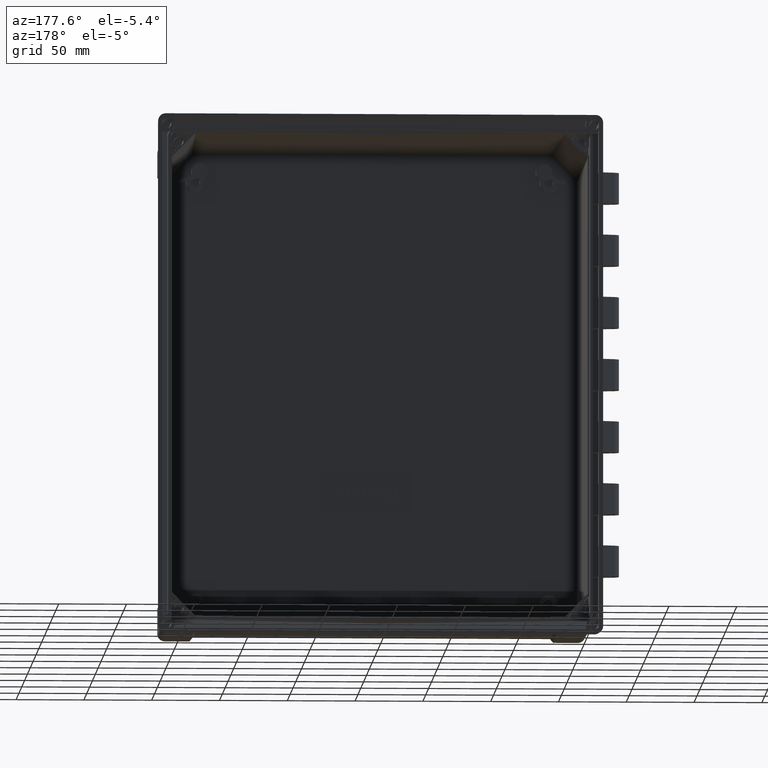
[diagram: clean part render]
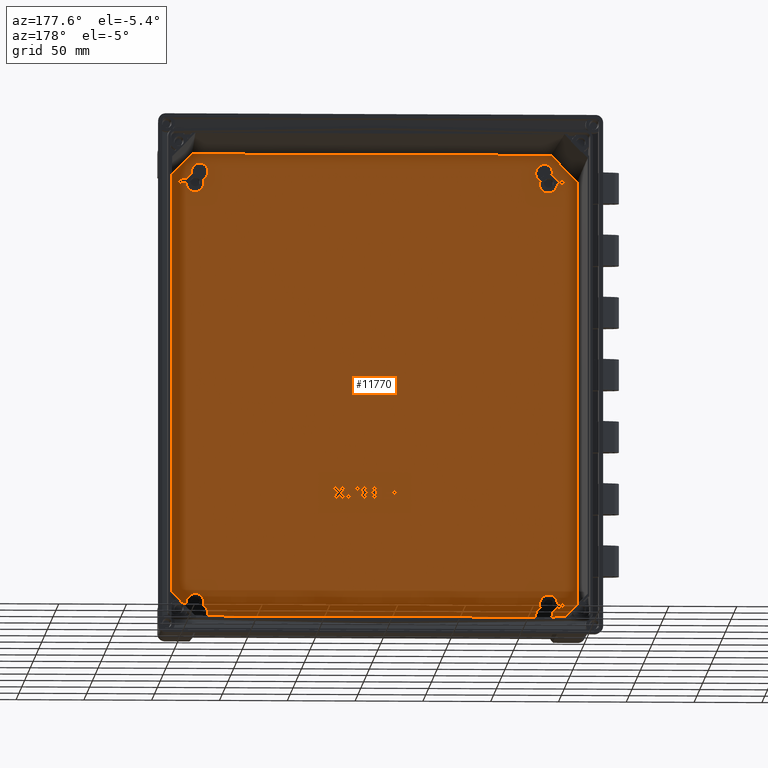
[diagram: same view with one face highlighted and labeled with its STEP entity id]
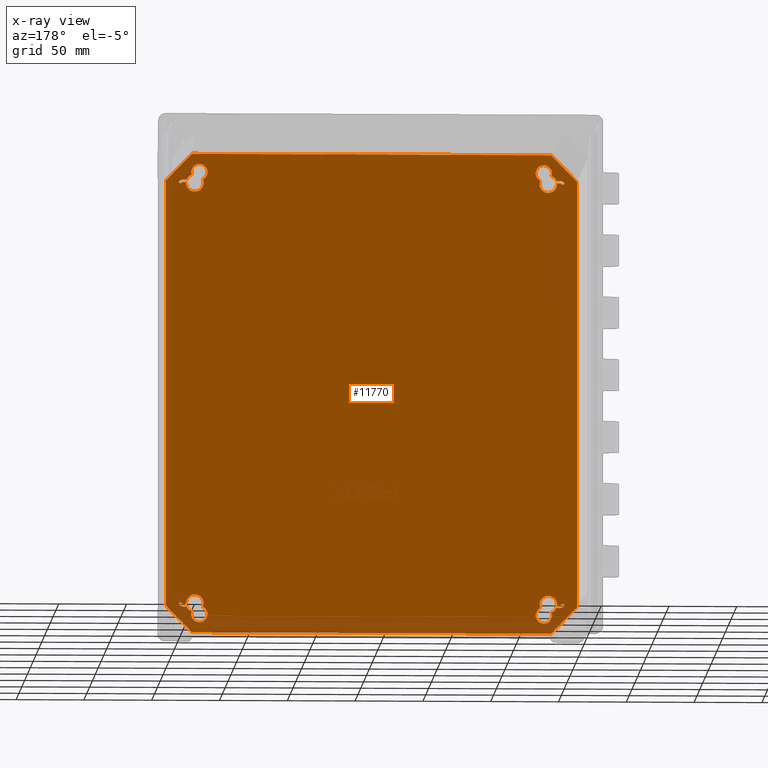
[diagram: x-ray of the same camera — body ghosted, the highlighted face saturated]
A machine part, auxiliary view. The second image highlights one B-rep face of the part: STEP entity #11770.
The next image is the same camera in x-ray: the body ghosted, the highlighted face saturated — about 5% of this face is hidden behind the body in this view.
In plain terms, the highlighted planar face has unit normal (0, -1, 0).
Its self-contained STEP definition (entity closure, byte-faithful):
#64 = FACE_OUTER_BOUND ( 'NONE', #2574, .T. ) ;
#116 = CIRCLE ( 'NONE', #7383, 4.000000000000003600 ) ;
#151 = AXIS2_PLACEMENT_3D ( 'NONE', #12990, #4440, #4917 ) ;
#295 = CIRCLE ( 'NONE', #14087, 6.500000000000005300 ) ;
#332 = VERTEX_POINT ( 'NONE', #8402 ) ;
#569 = VERTEX_POINT ( 'NONE', #5795 ) ;
#660 = CIRCLE ( 'NONE', #12095, 0.5000000000000004400 ) ;
#777 = CARTESIAN_POINT ( 'NONE',  ( 136.7949235880805600, -160.4000000000000100, 155.8568415562056100 ) ) ;
#800 = CIRCLE ( 'NONE', #9741, 6.000000000000005300 ) ;
#928 = ORIENTED_EDGE ( 'NONE', *, *, #16315, .F. ) ;
#993 = DIRECTION ( 'NONE',  ( 0.0000000000000000000, 0.0000000000000000000, 1.000000000000000000 ) ) ;
#1037 = AXIS2_PLACEMENT_3D ( 'NONE', #8504, #18223, #19846 ) ;
#1213 = DIRECTION ( 'NONE',  ( 0.0000000000000000000, 1.000000000000000000, 0.0000000000000000000 ) ) ;
#1239 = ORIENTED_EDGE ( 'NONE', *, *, #8082, .F. ) ;
#1255 = VERTEX_POINT ( 'NONE', #7609 ) ;
#1256 = CARTESIAN_POINT ( 'NONE',  ( 130.2999999999999500, -160.4000000000000100, -155.6000000000000500 ) ) ;
#1290 = LINE ( 'NONE', #12359, #3538 ) ;
#1327 = DIRECTION ( 'NONE',  ( -0.0000000000000000000, 1.000000000000000000, 0.0000000000000000000 ) ) ;
#1359 = DIRECTION ( 'NONE',  ( -0.0000000000000000000, 1.000000000000000000, 0.0000000000000000000 ) ) ;
#1415 = EDGE_CURVE ( 'NONE', #6500, #2694, #15702, .T. ) ;
#1430 = CARTESIAN_POINT ( 'NONE',  ( -127.0000000000000000, -160.4000000000000100, -163.6000000000000500 ) ) ;
#1507 = CARTESIAN_POINT ( 'NONE',  ( -130.3000000000000700, -160.4000000000000100, -155.5999999999999700 ) ) ;
#1539 = CARTESIAN_POINT ( 'NONE',  ( -127.0000000000000000, -160.4000000000000100, -163.6000000000000500 ) ) ;
#1602 = VERTEX_POINT ( 'NONE', #7685 ) ;
#1671 = CARTESIAN_POINT ( 'NONE',  ( -132.3709107135739500, -160.4000000000000100, 177.0491578505147200 ) ) ;
#1750 = AXIS2_PLACEMENT_3D ( 'NONE', #13931, #10831, #5753 ) ;
#1881 = AXIS2_PLACEMENT_3D ( 'NONE', #1430, #19144, #6133 ) ;
#1919 = CIRCLE ( 'NONE', #9018, 6.500000000000005300 ) ;
#1929 = VERTEX_POINT ( 'NONE', #20820 ) ;
#1993 = ORIENTED_EDGE ( 'NONE', *, *, #16512, .F. ) ;
#2012 = ORIENTED_EDGE ( 'NONE', *, *, #5715, .F. ) ;
#2013 = CARTESIAN_POINT ( 'NONE',  ( 130.2999999999999500, -160.4000000000000100, -155.6000000000000500 ) ) ;
#2053 = VERTEX_POINT ( 'NONE', #2705 ) ;
#2092 = DIRECTION ( 'NONE',  ( 0.0000000000000000000, 0.0000000000000000000, -1.000000000000000000 ) ) ;
#2093 = CARTESIAN_POINT ( 'NONE',  ( -141.4213495895495200, -160.4000000000000100, -155.2471832475530700 ) ) ;
#2171 = CARTESIAN_POINT ( 'NONE',  ( 138.2236692768190400, -160.4000000000000100, -156.1207090964403800 ) ) ;
#2180 = CARTESIAN_POINT ( 'NONE',  ( -132.3728498188423000, -160.4000000000000100, 177.0491578505147200 ) ) ;
#2205 = VECTOR ( 'NONE', #18922, 1000.000000000000100 ) ;
#2230 = VERTEX_POINT ( 'NONE', #14937 ) ;
#2340 = AXIS2_PLACEMENT_3D ( 'NONE', #1507, #11009, #15798 ) ;
#2434 = DIRECTION ( 'NONE',  ( -0.0000000000000000000, -1.000000000000000000, -0.0000000000000000000 ) ) ;
#2476 = DIRECTION ( 'NONE',  ( 0.0000000000000000000, 0.0000000000000000000, -1.000000000000000000 ) ) ;
#2490 = DIRECTION ( 'NONE',  ( 0.0000000000000000000, 0.0000000000000000000, -1.000000000000000000 ) ) ;
#2521 = DIRECTION ( 'NONE',  ( -0.0000000000000000000, -1.000000000000000000, -0.0000000000000000000 ) ) ;
#2574 = EDGE_LOOP ( 'NONE', ( #20580, #17689, #11982, #19529, #13867, #19579, #13096, #4085 ) ) ;
#2576 = AXIS2_PLACEMENT_3D ( 'NONE', #9265, #12581, #7571 ) ;
#2598 = CARTESIAN_POINT ( 'NONE',  ( -130.3000000000000400, -160.4000000000000100, 149.1000000000000200 ) ) ;
#2638 = VERTEX_POINT ( 'NONE', #4298 ) ;
#2694 = VERTEX_POINT ( 'NONE', #9241 ) ;
#2705 = CARTESIAN_POINT ( 'NONE',  ( 136.7949235880805600, -160.4000000000000100, -155.8568415562055800 ) ) ;
#2711 = CIRCLE ( 'NONE', #2340, 6.500000000000005300 ) ;
#2830 = CARTESIAN_POINT ( 'NONE',  ( 138.2236692768190400, -160.4000000000000100, 152.1207090964403800 ) ) ;
#2833 = ORIENTED_EDGE ( 'NONE', *, *, #4732, .F. ) ;
#2842 = VECTOR ( 'NONE', #12083, 1000.000000000000100 ) ;
#3018 = VERTEX_POINT ( 'NONE', #2171 ) ;
#3085 = VERTEX_POINT ( 'NONE', #11834 ) ;
#3179 = ORIENTED_EDGE ( 'NONE', *, *, #6110, .T. ) ;
#3235 = ORIENTED_EDGE ( 'NONE', *, *, #19586, .T. ) ;
#3313 = VECTOR ( 'NONE', #6730, 1000.000000000000100 ) ;
#3468 = VERTEX_POINT ( 'NONE', #9549 ) ;
#3538 = VECTOR ( 'NONE', #4310, 1000.000000000000000 ) ;
#3638 = CARTESIAN_POINT ( 'NONE',  ( 141.0717991529603200, -160.4000000000000100, 155.6046947750319600 ) ) ;
#3801 = ORIENTED_EDGE ( 'NONE', *, *, #12397, .F. ) ;
#3848 = CARTESIAN_POINT ( 'NONE',  ( 141.4213495895495200, -160.4000000000000100, -155.2471832475530100 ) ) ;
#3903 = CIRCLE ( 'NONE', #15787, 6.500000000000005300 ) ;
#3999 = VERTEX_POINT ( 'NONE', #19834 ) ;
#4014 = LINE ( 'NONE', #17431, #20641 ) ;
#4015 = DIRECTION ( 'NONE',  ( 0.6991008731783916500, 0.0000000000000000000, 0.7150230549578178200 ) ) ;
#4085 = ORIENTED_EDGE ( 'NONE', *, *, #4803, .T. ) ;
#4097 = CARTESIAN_POINT ( 'NONE',  ( -141.4213495895495200, -160.4000000000000100, 155.2471832475530700 ) ) ;
#4116 = AXIS2_PLACEMENT_3D ( 'NONE', #6942, #18124, #2092 ) ;
#4150 = AXIS2_PLACEMENT_3D ( 'NONE', #5688, #7237, #19906 ) ;
#4298 = CARTESIAN_POINT ( 'NONE',  ( 124.3500548983536300, -160.4000000000000100, 158.2168976455709200 ) ) ;
#4310 = DIRECTION ( 'NONE',  ( -3.526926042593516500E-016, 0.0000000000000000000, -1.000000000000000000 ) ) ;
#4343 = CARTESIAN_POINT ( 'NONE',  ( 141.4213495895495200, -160.4000000000000100, 155.2471832475530700 ) ) ;
#4344 = DIRECTION ( 'NONE',  ( -0.0000000000000000000, 1.000000000000000000, 0.0000000000000000000 ) ) ;
#4364 = ORIENTED_EDGE ( 'NONE', *, *, #18572, .T. ) ;
#4389 = ORIENTED_EDGE ( 'NONE', *, *, #19234, .F. ) ;
#4436 = CARTESIAN_POINT ( 'NONE',  ( -142.1400118401855700, -160.4000000000000100, -155.9498422785540900 ) ) ;
#4437 = CARTESIAN_POINT ( 'NONE',  ( 141.4213495895495200, -160.4000000000000100, -155.2471832475530700 ) ) ;
#4440 = DIRECTION ( 'NONE',  ( 0.0000000000000000000, -1.000000000000000000, 0.0000000000000000000 ) ) ;
#4441 = DIRECTION ( 'NONE',  ( -0.0000000000000000000, 1.000000000000000000, -0.0000000000000000000 ) ) ;
#4445 = CARTESIAN_POINT ( 'NONE',  ( 130.2999999999999800, -160.4000000000000100, 155.5999999999999900 ) ) ;
#4526 = CARTESIAN_POINT ( 'NONE',  ( -136.4026792968056400, -160.4000000000000100, 157.8377009184295300 ) ) ;
#4607 = CIRCLE ( 'NONE', #6551, 6.000000000000005300 ) ;
#4612 = DIRECTION ( 'NONE',  ( -4.270088556250598700E-015, 0.0000000000000000000, -1.000000000000000000 ) ) ;
#4699 = DIRECTION ( 'NONE',  ( -0.0000000000000000000, 1.000000000000000000, 0.0000000000000000000 ) ) ;
#4703 = ORIENTED_EDGE ( 'NONE', *, *, #19399, .T. ) ;
#4711 = DIRECTION ( 'NONE',  ( 0.0000000000000000000, 0.0000000000000000000, -1.000000000000000000 ) ) ;
#4732 = EDGE_CURVE ( 'NONE', #1602, #16742, #2711, .T. ) ;
#4746 = DIRECTION ( 'NONE',  ( -1.000000000000000000, 0.0000000000000000000, 0.0000000000000000000 ) ) ;
#4781 = DIRECTION ( 'NONE',  ( -0.0000000000000000000, -1.000000000000000000, -0.0000000000000000000 ) ) ;
#4803 = EDGE_CURVE ( 'NONE', #1929, #12674, #19829, .T. ) ;
#4851 = CIRCLE ( 'NONE', #13071, 4.000000000000003600 ) ;
#4869 = CIRCLE ( 'NONE', #4116, 6.000000000000005300 ) ;
#4872 = AXIS2_PLACEMENT_3D ( 'NONE', #15078, #5103, #5395 ) ;
#4909 = EDGE_LOOP ( 'NONE', ( #4389, #8409, #20336, #18026, #2833, #17153, #13753, #4703, #4364, #3179, #6315, #20063 ) ) ;
#4917 = DIRECTION ( 'NONE',  ( 0.0000000000000000000, 0.0000000000000000000, -1.000000000000000000 ) ) ;
#4940 = ORIENTED_EDGE ( 'NONE', *, *, #18431, .F. ) ;
#5066 = CARTESIAN_POINT ( 'NONE',  ( -124.3500548983536500, -160.4000000000000100, 158.2168976455709200 ) ) ;
#5103 = DIRECTION ( 'NONE',  ( -0.0000000000000000000, 1.000000000000000000, 0.0000000000000000000 ) ) ;
#5104 = ORIENTED_EDGE ( 'NONE', *, *, #6525, .T. ) ;
#5148 = CARTESIAN_POINT ( 'NONE',  ( 140.7553402778335100, -160.4000000000000100, 155.2175852551884800 ) ) ;
#5287 = CARTESIAN_POINT ( 'NONE',  ( -141.4213495895495200, -160.4000000000000100, -155.2471832475530700 ) ) ;
#5357 = DIRECTION ( 'NONE',  ( 0.0000000000000000000, 0.0000000000000000000, -1.000000000000000000 ) ) ;
#5362 = CIRCLE ( 'NONE', #1037, 0.5000000000000004400 ) ;
#5395 = DIRECTION ( 'NONE',  ( -8.540177112501197500E-015, 0.0000000000000000000, -1.000000000000000000 ) ) ;
#5491 = CARTESIAN_POINT ( 'NONE',  ( 151.5917432887406400, -160.4000000000000100, -157.3905664311596400 ) ) ;
#5562 = CARTESIAN_POINT ( 'NONE',  ( -151.5930564263212800, -160.4000000000000100, 157.3892233865711300 ) ) ;
#5570 = VERTEX_POINT ( 'NONE', #5491 ) ;
#5577 = CARTESIAN_POINT ( 'NONE',  ( 127.0000000000000000, -160.4000000000000100, -169.6000000000000500 ) ) ;
#5688 = CARTESIAN_POINT ( 'NONE',  ( -130.3000000000000700, -160.4000000000000100, -155.5999999999999700 ) ) ;
#5715 = EDGE_CURVE ( 'NONE', #10988, #2638, #8206, .T. ) ;
#5743 = AXIS2_PLACEMENT_3D ( 'NONE', #9525, #6328, #4711 ) ;
#5751 = VECTOR ( 'NONE', #10893, 1000.000000000000100 ) ;
#5753 = DIRECTION ( 'NONE',  ( 0.0000000000000000000, 0.0000000000000000000, -1.000000000000000000 ) ) ;
#5795 = CARTESIAN_POINT ( 'NONE',  ( 130.2999999999999500, -160.4000000000000100, -149.1000000000000500 ) ) ;
#5819 = CARTESIAN_POINT ( 'NONE',  ( 151.5930564263214000, -160.4000000000000100, -157.3892233865710800 ) ) ;
#5820 = ORIENTED_EDGE ( 'NONE', *, *, #7547, .F. ) ;
#5908 = LINE ( 'NONE', #5819, #20769 ) ;
#5945 = CIRCLE ( 'NONE', #13479, 6.000000000000005300 ) ;
#5969 = VERTEX_POINT ( 'NONE', #18129 ) ;
#5980 = CARTESIAN_POINT ( 'NONE',  ( 130.2999999999999800, -160.4000000000000100, 155.5999999999999900 ) ) ;
#5991 = ORIENTED_EDGE ( 'NONE', *, *, #15917, .F. ) ;
#6095 = DIRECTION ( 'NONE',  ( 0.0000000000000000000, 0.0000000000000000000, 1.000000000000000000 ) ) ;
#6110 = EDGE_CURVE ( 'NONE', #18904, #20001, #12750, .T. ) ;
#6133 = DIRECTION ( 'NONE',  ( 0.0000000000000000000, 0.0000000000000000000, 1.000000000000000000 ) ) ;
#6134 = VECTOR ( 'NONE', #11805, 1000.000000000000100 ) ;
#6164 = VERTEX_POINT ( 'NONE', #777 ) ;
#6184 = VERTEX_POINT ( 'NONE', #7347 ) ;
#6225 = ORIENTED_EDGE ( 'NONE', *, *, #13006, .F. ) ;
#6264 = VERTEX_POINT ( 'NONE', #18887 ) ;
#6294 = CIRCLE ( 'NONE', #7172, 6.000000000000005300 ) ;
#6315 = ORIENTED_EDGE ( 'NONE', *, *, #7727, .T. ) ;
#6328 = DIRECTION ( 'NONE',  ( -0.0000000000000000000, 1.000000000000000000, -0.0000000000000000000 ) ) ;
#6338 = DIRECTION ( 'NONE',  ( 0.0000000000000000000, 0.0000000000000000000, -1.000000000000000000 ) ) ;
#6383 = CARTESIAN_POINT ( 'NONE',  ( -138.2236692768190400, -160.4000000000000100, -156.1207090964403800 ) ) ;
#6388 = DIRECTION ( 'NONE',  ( 0.0000000000000000000, 0.0000000000000000000, 1.000000000000000000 ) ) ;
#6394 = VERTEX_POINT ( 'NONE', #12571 ) ;
#6500 = VERTEX_POINT ( 'NONE', #18793 ) ;
#6522 = AXIS2_PLACEMENT_3D ( 'NONE', #4445, #1359, #7622 ) ;
#6525 = EDGE_CURVE ( 'NONE', #7332, #2638, #20515, .T. ) ;
#6551 = AXIS2_PLACEMENT_3D ( 'NONE', #20153, #12160, #13777 ) ;
#6564 = EDGE_CURVE ( 'NONE', #6806, #7965, #660, .T. ) ;
#6566 = CARTESIAN_POINT ( 'NONE',  ( -138.2236692768190400, -160.4000000000000100, -152.1207090964403800 ) ) ;
#6585 = CIRCLE ( 'NONE', #18420, 0.5000000000000004400 ) ;
#6665 = CIRCLE ( 'NONE', #9305, 4.000000000000003600 ) ;
#6705 = AXIS2_PLACEMENT_3D ( 'NONE', #3638, #8401, #19608 ) ;
#6730 = DIRECTION ( 'NONE',  ( -0.7150230549578269200, 0.0000000000000000000, -0.6991008731783823200 ) ) ;
#6747 = ORIENTED_EDGE ( 'NONE', *, *, #19951, .F. ) ;
#6806 = VERTEX_POINT ( 'NONE', #16752 ) ;
#6850 = AXIS2_PLACEMENT_3D ( 'NONE', #19547, #13148, #11537 ) ;
#6904 = CIRCLE ( 'NONE', #4872, 6.500000000000005300 ) ;
#6942 = CARTESIAN_POINT ( 'NONE',  ( -127.0000000000000000, -160.4000000000000100, 163.6000000000000500 ) ) ;
#6987 = VECTOR ( 'NONE', #4746, 1000.000000000000000 ) ;
#7088 = CIRCLE ( 'NONE', #20331, 6.500000000000005300 ) ;
#7158 = CIRCLE ( 'NONE', #6705, 0.5000000000000004400 ) ;
#7163 = EDGE_CURVE ( 'NONE', #19443, #17018, #4869, .T. ) ;
#7172 = AXIS2_PLACEMENT_3D ( 'NONE', #11602, #14625, #9783 ) ;
#7199 = DIRECTION ( 'NONE',  ( -0.0000000000000000000, 1.000000000000000000, -0.0000000000000000000 ) ) ;
#7235 = EDGE_CURVE ( 'NONE', #17018, #16391, #15723, .T. ) ;
#7237 = DIRECTION ( 'NONE',  ( -0.0000000000000000000, 1.000000000000000000, 0.0000000000000000000 ) ) ;
#7332 = VERTEX_POINT ( 'NONE', #13078 ) ;
#7347 = CARTESIAN_POINT ( 'NONE',  ( -151.5917432887405300, -160.4000000000000100, -157.3905664311597000 ) ) ;
#7376 = AXIS2_PLACEMENT_3D ( 'NONE', #9002, #1213, #18916 ) ;
#7383 = AXIS2_PLACEMENT_3D ( 'NONE', #16424, #8116, #17702 ) ;
#7425 = VERTEX_POINT ( 'NONE', #19544 ) ;
#7530 = CARTESIAN_POINT ( 'NONE',  ( -130.3000000000000400, -160.4000000000000100, 155.6000000000000200 ) ) ;
#7547 = EDGE_CURVE ( 'NONE', #3468, #6264, #4607, .T. ) ;
#7571 = DIRECTION ( 'NONE',  ( 0.0000000000000000000, 0.0000000000000000000, 1.000000000000000000 ) ) ;
#7609 = CARTESIAN_POINT ( 'NONE',  ( 142.1147152333034000, -160.4000000000000100, 156.6879578705413100 ) ) ;
#7622 = DIRECTION ( 'NONE',  ( 0.0000000000000000000, 0.0000000000000000000, -1.000000000000000000 ) ) ;
#7685 = CARTESIAN_POINT ( 'NONE',  ( -136.7949235880806800, -160.4000000000000100, -155.8568415562056400 ) ) ;
#7727 = EDGE_CURVE ( 'NONE', #20001, #2230, #11442, .T. ) ;
#7787 = EDGE_CURVE ( 'NONE', #18854, #3468, #14717, .T. ) ;
#7792 = VERTEX_POINT ( 'NONE', #19074 ) ;
#7868 = DIRECTION ( 'NONE',  ( 0.0000000000000000000, 0.0000000000000000000, -1.000000000000000000 ) ) ;
#7875 = CARTESIAN_POINT ( 'NONE',  ( -132.3709107135738900, -160.4000000000000100, -177.0491578505147500 ) ) ;
#7900 = LINE ( 'NONE', #16774, #6134 ) ;
#7917 = AXIS2_PLACEMENT_3D ( 'NONE', #16900, #8868, #2476 ) ;
#7965 = VERTEX_POINT ( 'NONE', #8351 ) ;
#7978 = CARTESIAN_POINT ( 'NONE',  ( 141.7904614035964000, -160.4000000000000100, -156.3073538060329200 ) ) ;
#7994 = EDGE_LOOP ( 'NONE', ( #19358, #928, #16262, #18060, #13193, #4940, #15475, #6747, #5991, #14745 ) ) ;
#8079 = FACE_BOUND ( 'NONE', #8698, .T. ) ;
#8082 = EDGE_CURVE ( 'NONE', #13703, #16600, #5362, .T. ) ;
#8116 = DIRECTION ( 'NONE',  ( 0.0000000000000000000, -1.000000000000000000, 0.0000000000000000000 ) ) ;
#8169 = CIRCLE ( 'NONE', #1881, 6.000000000000005300 ) ;
#8206 = CIRCLE ( 'NONE', #18512, 6.500000000000005300 ) ;
#8351 = CARTESIAN_POINT ( 'NONE',  ( -141.0717991529603200, -160.4000000000000100, 155.1046947750319600 ) ) ;
#8401 = DIRECTION ( 'NONE',  ( -0.0000000000000000000, -1.000000000000000000, -0.0000000000000000000 ) ) ;
#8402 = CARTESIAN_POINT ( 'NONE',  ( -124.3500548983537000, -160.4000000000000100, -158.2168976455709000 ) ) ;
#8409 = ORIENTED_EDGE ( 'NONE', *, *, #15794, .T. ) ;
#8504 = CARTESIAN_POINT ( 'NONE',  ( 141.0717991529603200, -160.4000000000000100, -155.6046947750319600 ) ) ;
#8598 = EDGE_LOOP ( 'NONE', ( #15706, #5104, #2012, #10181, #15322, #13236, #3235, #18579, #14747, #9444 ) ) ;
#8698 = EDGE_LOOP ( 'NONE', ( #11427, #16972, #5820, #16934, #6225, #15835, #1239, #14608, #12426, #3801, #20411, #1993 ) ) ;
#8796 = CIRCLE ( 'NONE', #2576, 6.000000000000005300 ) ;
#8831 = PLANE ( 'NONE',  #14882 ) ;
#8868 = DIRECTION ( 'NONE',  ( -0.0000000000000000000, -1.000000000000000000, -0.0000000000000000000 ) ) ;
#8940 = CARTESIAN_POINT ( 'NONE',  ( -142.1147152333034000, -160.4000000000000100, 156.6879578705413100 ) ) ;
#8986 = CARTESIAN_POINT ( 'NONE',  ( 138.2236692768190400, -160.4000000000000100, 152.1207090964403800 ) ) ;
#8988 = VERTEX_POINT ( 'NONE', #10433 ) ;
#9002 = CARTESIAN_POINT ( 'NONE',  ( -141.7904614035964000, -160.4000000000000100, 156.3073538060329200 ) ) ;
#9018 = AXIS2_PLACEMENT_3D ( 'NONE', #7530, #4344, #18780 ) ;
#9039 = EDGE_CURVE ( 'NONE', #18984, #14480, #18937, .T. ) ;
#9057 = CARTESIAN_POINT ( 'NONE',  ( -141.0717991529603200, -160.4000000000000100, -155.6046947750319600 ) ) ;
#9073 = CARTESIAN_POINT ( 'NONE',  ( -136.4026792968056700, -160.4000000000000100, -157.8377009184295300 ) ) ;
#9158 = EDGE_CURVE ( 'NONE', #2694, #18807, #11643, .T. ) ;
#9183 = CIRCLE ( 'NONE', #16141, 6.000000000000005300 ) ;
#9207 = EDGE_CURVE ( 'NONE', #16742, #332, #7088, .T. ) ;
#9219 = CARTESIAN_POINT ( 'NONE',  ( -127.0000000000000000, -160.4000000000000100, -169.6000000000000500 ) ) ;
#9241 = CARTESIAN_POINT ( 'NONE',  ( -142.1400118401855700, -160.4000000000000100, 155.9498422785540300 ) ) ;
#9265 = CARTESIAN_POINT ( 'NONE',  ( -138.2236692768190400, -160.4000000000000100, 152.1207090964403800 ) ) ;
#9301 = CARTESIAN_POINT ( 'NONE',  ( -151.5917432887405300, -160.4000000000000100, 157.3905664311597000 ) ) ;
#9305 = AXIS2_PLACEMENT_3D ( 'NONE', #2830, #4441, #15722 ) ;
#9377 = VECTOR ( 'NONE', #4015, 1000.000000000000100 ) ;
#9426 = VECTOR ( 'NONE', #12477, 1000.000000000000100 ) ;
#9430 = DIRECTION ( 'NONE',  ( -0.0000000000000000000, 1.000000000000000000, 0.0000000000000000000 ) ) ;
#9444 = ORIENTED_EDGE ( 'NONE', *, *, #19389, .T. ) ;
#9498 = CARTESIAN_POINT ( 'NONE',  ( -132.6745411758885800, -160.4000000000000100, 161.6507482350541000 ) ) ;
#9525 = CARTESIAN_POINT ( 'NONE',  ( 138.2236692768190400, -160.4000000000000100, -152.1207090964403800 ) ) ;
#9549 = CARTESIAN_POINT ( 'NONE',  ( 138.2236692768190400, -160.4000000000000100, -158.1207090964403800 ) ) ;
#9653 = DIRECTION ( 'NONE',  ( 0.0000000000000000000, 0.0000000000000000000, -1.000000000000000000 ) ) ;
#9741 = AXIS2_PLACEMENT_3D ( 'NONE', #1539, #14286, #6388 ) ;
#9783 = DIRECTION ( 'NONE',  ( 0.0000000000000000000, 0.0000000000000000000, -1.000000000000000000 ) ) ;
#9833 = DIRECTION ( 'NONE',  ( -4.270088556250598700E-015, 0.0000000000000000000, -1.000000000000000000 ) ) ;
#9939 = CARTESIAN_POINT ( 'NONE',  ( 132.6745411758885800, -160.4000000000000100, -161.6507482350540700 ) ) ;
#9947 = VERTEX_POINT ( 'NONE', #5577 ) ;
#9977 = VERTEX_POINT ( 'NONE', #10516 ) ;
#10029 = VERTEX_POINT ( 'NONE', #7875 ) ;
#10059 = LINE ( 'NONE', #20532, #5751 ) ;
#10090 = EDGE_CURVE ( 'NONE', #11515, #332, #800, .T. ) ;
#10124 = EDGE_CURVE ( 'NONE', #2230, #13235, #6294, .T. ) ;
#10181 = ORIENTED_EDGE ( 'NONE', *, *, #12833, .F. ) ;
#10277 = LINE ( 'NONE', #16157, #6987 ) ;
#10399 = EDGE_CURVE ( 'NONE', #6184, #18984, #4014, .T. ) ;
#10433 = CARTESIAN_POINT ( 'NONE',  ( 132.3709107135738900, -160.4000000000000100, -177.0491578505147500 ) ) ;
#10516 = CARTESIAN_POINT ( 'NONE',  ( -140.7553402778335100, -160.4000000000000100, -155.2175852551884800 ) ) ;
#10548 = CARTESIAN_POINT ( 'NONE',  ( 140.7553402778335100, -160.4000000000000100, -155.2175852551884800 ) ) ;
#10563 = EDGE_CURVE ( 'NONE', #18807, #10724, #8796, .T. ) ;
#10600 = DIRECTION ( 'NONE',  ( 0.0000000000000000000, -1.000000000000000000, 0.0000000000000000000 ) ) ;
#10724 = VERTEX_POINT ( 'NONE', #4526 ) ;
#10831 = DIRECTION ( 'NONE',  ( -0.0000000000000000000, 1.000000000000000000, -0.0000000000000000000 ) ) ;
#10832 = CIRCLE ( 'NONE', #16801, 0.5000000000000004400 ) ;
#10893 = DIRECTION ( 'NONE',  ( 0.7150230549578269200, 0.0000000000000000000, 0.6991008731783823200 ) ) ;
#10988 = VERTEX_POINT ( 'NONE', #16502 ) ;
#11009 = DIRECTION ( 'NONE',  ( -0.0000000000000000000, 1.000000000000000000, 0.0000000000000000000 ) ) ;
#11073 = CARTESIAN_POINT ( 'NONE',  ( 132.3695550833877000, -160.4000000000000100, 177.0505443554875500 ) ) ;
#11107 = DIRECTION ( 'NONE',  ( 0.0000000000000000000, 0.0000000000000000000, -1.000000000000000000 ) ) ;
#11226 = CIRCLE ( 'NONE', #16861, 4.000000000000003600 ) ;
#11281 = DIRECTION ( 'NONE',  ( -0.0000000000000000000, -1.000000000000000000, -0.0000000000000000000 ) ) ;
#11284 = DIRECTION ( 'NONE',  ( -0.0000000000000000000, 1.000000000000000000, 0.0000000000000000000 ) ) ;
#11301 = DIRECTION ( 'NONE',  ( 0.0000000000000000000, 0.0000000000000000000, -1.000000000000000000 ) ) ;
#11357 = CARTESIAN_POINT ( 'NONE',  ( 141.7904614035964000, -160.4000000000000100, 156.3073538060329200 ) ) ;
#11417 = DIRECTION ( 'NONE',  ( 0.0000000000000000000, 0.0000000000000000000, -1.000000000000000000 ) ) ;
#11427 = ORIENTED_EDGE ( 'NONE', *, *, #15721, .F. ) ;
#11442 = CIRCLE ( 'NONE', #11559, 6.000000000000005300 ) ;
#11475 = VERTEX_POINT ( 'NONE', #4343 ) ;
#11515 = VERTEX_POINT ( 'NONE', #9219 ) ;
#11527 = AXIS2_PLACEMENT_3D ( 'NONE', #18862, #11281, #16196 ) ;
#11537 = DIRECTION ( 'NONE',  ( 0.0000000000000000000, 0.0000000000000000000, 1.000000000000000000 ) ) ;
#11559 = AXIS2_PLACEMENT_3D ( 'NONE', #6566, #14530, #11301 ) ;
#11584 = CIRCLE ( 'NONE', #6522, 6.500000000000005300 ) ;
#11602 = CARTESIAN_POINT ( 'NONE',  ( -138.2236692768190400, -160.4000000000000100, -152.1207090964403800 ) ) ;
#11643 = CIRCLE ( 'NONE', #7376, 0.5000000000000004400 ) ;
#11651 = EDGE_CURVE ( 'NONE', #7332, #7425, #6904, .T. ) ;
#11770 = ADVANCED_FACE ( 'NONE', ( #13140, #18422, #64, #8079, #18155 ), #8831, .F. ) ;
#11805 = DIRECTION ( 'NONE',  ( -0.6991008731783920900, 0.0000000000000000000, 0.7150230549578172600 ) ) ;
#11834 = CARTESIAN_POINT ( 'NONE',  ( 142.1400118401855700, -160.4000000000000100, 155.9498422785540300 ) ) ;
#11982 = ORIENTED_EDGE ( 'NONE', *, *, #14424, .T. ) ;
#12083 = DIRECTION ( 'NONE',  ( -0.7150230549578269200, 0.0000000000000000000, 0.6991008731783823200 ) ) ;
#12095 = AXIS2_PLACEMENT_3D ( 'NONE', #12472, #15708, #9653 ) ;
#12148 = EDGE_CURVE ( 'NONE', #12674, #5570, #1290, .T. ) ;
#12160 = DIRECTION ( 'NONE',  ( -0.0000000000000000000, 1.000000000000000000, -0.0000000000000000000 ) ) ;
#12163 = CARTESIAN_POINT ( 'NONE',  ( -141.7904614035964000, -160.4000000000000100, -156.3073538060329200 ) ) ;
#12359 = CARTESIAN_POINT ( 'NONE',  ( 151.5917432887407600, -160.4000000000000100, 157.3924447546334300 ) ) ;
#12397 = EDGE_CURVE ( 'NONE', #569, #2053, #295, .T. ) ;
#12426 = ORIENTED_EDGE ( 'NONE', *, *, #16328, .F. ) ;
#12443 = DIRECTION ( 'NONE',  ( 0.0000000000000000000, 0.0000000000000000000, -1.000000000000000000 ) ) ;
#12472 = CARTESIAN_POINT ( 'NONE',  ( -141.0717991529603200, -160.4000000000000100, 155.6046947750319600 ) ) ;
#12477 = DIRECTION ( 'NONE',  ( 0.7150230549578269200, 0.0000000000000000000, -0.6991008731783823200 ) ) ;
#12571 = CARTESIAN_POINT ( 'NONE',  ( -132.6745411758885800, -160.4000000000000100, -161.6507482350540400 ) ) ;
#12581 = DIRECTION ( 'NONE',  ( 0.0000000000000000000, 1.000000000000000000, 0.0000000000000000000 ) ) ;
#12594 = CARTESIAN_POINT ( 'NONE',  ( -141.0717991529603200, -160.4000000000000100, 155.6046947750319600 ) ) ;
#12674 = VERTEX_POINT ( 'NONE', #16226 ) ;
#12686 = CIRCLE ( 'NONE', #151, 4.000000000000003600 ) ;
#12750 = CIRCLE ( 'NONE', #17319, 0.5000000000000004400 ) ;
#12800 = EDGE_CURVE ( 'NONE', #7792, #569, #13613, .T. ) ;
#12833 = EDGE_CURVE ( 'NONE', #6164, #10988, #11584, .T. ) ;
#12893 = DIRECTION ( 'NONE',  ( 0.0000000000000000000, 0.0000000000000000000, 1.000000000000000000 ) ) ;
#12911 = EDGE_CURVE ( 'NONE', #3085, #1255, #10832, .T. ) ;
#12990 = CARTESIAN_POINT ( 'NONE',  ( 138.2236692768190400, -160.4000000000000100, -152.1207090964403800 ) ) ;
#13006 = EDGE_CURVE ( 'NONE', #20783, #18854, #18373, .T. ) ;
#13071 = AXIS2_PLACEMENT_3D ( 'NONE', #15240, #7199, #5357 ) ;
#13078 = CARTESIAN_POINT ( 'NONE',  ( 132.6745411758885500, -160.4000000000000100, 161.6507482350540100 ) ) ;
#13096 = ORIENTED_EDGE ( 'NONE', *, *, #14160, .T. ) ;
#13140 = FACE_BOUND ( 'NONE', #8598, .T. ) ;
#13148 = DIRECTION ( 'NONE',  ( 0.0000000000000000000, 1.000000000000000000, 0.0000000000000000000 ) ) ;
#13193 = ORIENTED_EDGE ( 'NONE', *, *, #1415, .F. ) ;
#13207 = LINE ( 'NONE', #4437, #9426 ) ;
#13235 = VERTEX_POINT ( 'NONE', #9073 ) ;
#13236 = ORIENTED_EDGE ( 'NONE', *, *, #18744, .T. ) ;
#13479 = AXIS2_PLACEMENT_3D ( 'NONE', #15375, #15442, #15584 ) ;
#13523 = DIRECTION ( 'NONE',  ( 1.000000000000000000, 0.0000000000000000000, -1.048386268544251000E-016 ) ) ;
#13576 = LINE ( 'NONE', #2180, #20088 ) ;
#13613 = CIRCLE ( 'NONE', #17318, 6.500000000000005300 ) ;
#13703 = VERTEX_POINT ( 'NONE', #10548 ) ;
#13753 = ORIENTED_EDGE ( 'NONE', *, *, #20066, .T. ) ;
#13768 = EDGE_CURVE ( 'NONE', #11475, #3085, #10059, .T. ) ;
#13777 = DIRECTION ( 'NONE',  ( 0.0000000000000000000, 0.0000000000000000000, -1.000000000000000000 ) ) ;
#13867 = ORIENTED_EDGE ( 'NONE', *, *, #10399, .T. ) ;
#13931 = CARTESIAN_POINT ( 'NONE',  ( -138.2236692768190400, -160.4000000000000100, -152.1207090964403800 ) ) ;
#14087 = AXIS2_PLACEMENT_3D ( 'NONE', #1256, #20390, #12443 ) ;
#14160 = EDGE_CURVE ( 'NONE', #14480, #1929, #13576, .T. ) ;
#14215 = DIRECTION ( 'NONE',  ( 0.0000000000000000000, 1.000000000000000000, 0.0000000000000000000 ) ) ;
#14286 = DIRECTION ( 'NONE',  ( -0.0000000000000000000, -1.000000000000000000, -0.0000000000000000000 ) ) ;
#14289 = CARTESIAN_POINT ( 'NONE',  ( -130.3000000000000700, -160.4000000000000100, -155.5999999999999700 ) ) ;
#14352 = DIRECTION ( 'NONE',  ( 0.0000000000000000000, 0.0000000000000000000, -1.000000000000000000 ) ) ;
#14407 = LINE ( 'NONE', #2093, #3313 ) ;
#14424 = EDGE_CURVE ( 'NONE', #8988, #10029, #10277, .T. ) ;
#14480 = VERTEX_POINT ( 'NONE', #1671 ) ;
#14530 = DIRECTION ( 'NONE',  ( -0.0000000000000000000, -1.000000000000000000, -0.0000000000000000000 ) ) ;
#14568 = EDGE_CURVE ( 'NONE', #6264, #20617, #15804, .T. ) ;
#14608 = ORIENTED_EDGE ( 'NONE', *, *, #19989, .F. ) ;
#14625 = DIRECTION ( 'NONE',  ( -0.0000000000000000000, -1.000000000000000000, -0.0000000000000000000 ) ) ;
#14717 = CIRCLE ( 'NONE', #5743, 6.000000000000005300 ) ;
#14745 = ORIENTED_EDGE ( 'NONE', *, *, #7235, .F. ) ;
#14747 = ORIENTED_EDGE ( 'NONE', *, *, #12911, .T. ) ;
#14757 = DIRECTION ( 'NONE',  ( -0.0000000000000000000, 1.000000000000000000, 0.0000000000000000000 ) ) ;
#14882 = AXIS2_PLACEMENT_3D ( 'NONE', #20236, #10600, #18348 ) ;
#14937 = CARTESIAN_POINT ( 'NONE',  ( -138.2236692768190400, -160.4000000000000100, -158.1207090964403800 ) ) ;
#15078 = CARTESIAN_POINT ( 'NONE',  ( 130.2999999999999800, -160.4000000000000100, 155.5999999999999900 ) ) ;
#15240 = CARTESIAN_POINT ( 'NONE',  ( -138.2236692768190400, -160.4000000000000100, -152.1207090964403800 ) ) ;
#15260 = CIRCLE ( 'NONE', #4150, 6.500000000000005300 ) ;
#15322 = ORIENTED_EDGE ( 'NONE', *, *, #15895, .T. ) ;
#15375 = CARTESIAN_POINT ( 'NONE',  ( 127.0000000000000000, -160.4000000000000100, -163.6000000000000500 ) ) ;
#15394 = CARTESIAN_POINT ( 'NONE',  ( -130.3000000000000700, -160.4000000000000100, -149.0999999999999700 ) ) ;
#15417 = DIRECTION ( 'NONE',  ( 0.0000000000000000000, 0.0000000000000000000, -1.000000000000000000 ) ) ;
#15442 = DIRECTION ( 'NONE',  ( 0.0000000000000000000, 1.000000000000000000, 0.0000000000000000000 ) ) ;
#15475 = ORIENTED_EDGE ( 'NONE', *, *, #6564, .F. ) ;
#15584 = DIRECTION ( 'NONE',  ( 0.0000000000000000000, 0.0000000000000000000, 1.000000000000000000 ) ) ;
#15619 = CARTESIAN_POINT ( 'NONE',  ( 142.1400118401855700, -160.4000000000000100, -155.9498422785540300 ) ) ;
#15644 = CARTESIAN_POINT ( 'NONE',  ( 142.1147152333034000, -160.4000000000000100, -156.6879578705413100 ) ) ;
#15702 = LINE ( 'NONE', #4097, #2842 ) ;
#15706 = ORIENTED_EDGE ( 'NONE', *, *, #11651, .F. ) ;
#15708 = DIRECTION ( 'NONE',  ( 0.0000000000000000000, 1.000000000000000000, 0.0000000000000000000 ) ) ;
#15721 = EDGE_CURVE ( 'NONE', #20617, #9947, #5945, .T. ) ;
#15722 = DIRECTION ( 'NONE',  ( 0.0000000000000000000, 0.0000000000000000000, 1.000000000000000000 ) ) ;
#15723 = CIRCLE ( 'NONE', #16000, 6.500000000000005300 ) ;
#15787 = AXIS2_PLACEMENT_3D ( 'NONE', #17610, #11284, #11417 ) ;
#15794 = EDGE_CURVE ( 'NONE', #6394, #11515, #8169, .T. ) ;
#15798 = DIRECTION ( 'NONE',  ( 0.0000000000000000000, 0.0000000000000000000, -1.000000000000000000 ) ) ;
#15804 = CIRCLE ( 'NONE', #20737, 6.500000000000005300 ) ;
#15835 = ORIENTED_EDGE ( 'NONE', *, *, #17415, .F. ) ;
#15895 = EDGE_CURVE ( 'NONE', #6164, #19933, #6665, .T. ) ;
#15917 = EDGE_CURVE ( 'NONE', #16391, #5969, #3903, .T. ) ;
#16000 = AXIS2_PLACEMENT_3D ( 'NONE', #16634, #1327, #4612 ) ;
#16008 = DIRECTION ( 'NONE',  ( -0.0000000000000000000, 1.000000000000000000, -0.0000000000000000000 ) ) ;
#16141 = AXIS2_PLACEMENT_3D ( 'NONE', #8986, #20249, #993 ) ;
#16157 = CARTESIAN_POINT ( 'NONE',  ( 132.3728498188422400, -160.4000000000000100, -177.0491578505147500 ) ) ;
#16196 = DIRECTION ( 'NONE',  ( 0.0000000000000000000, 0.0000000000000000000, -1.000000000000000000 ) ) ;
#16226 = CARTESIAN_POINT ( 'NONE',  ( 151.5917432887407600, -160.4000000000000100, 157.3905664311594700 ) ) ;
#16262 = ORIENTED_EDGE ( 'NONE', *, *, #10563, .F. ) ;
#16315 = EDGE_CURVE ( 'NONE', #10724, #19443, #1919, .T. ) ;
#16328 = EDGE_CURVE ( 'NONE', #2053, #3018, #11226, .T. ) ;
#16391 = VERTEX_POINT ( 'NONE', #2598 ) ;
#16424 = CARTESIAN_POINT ( 'NONE',  ( -138.2236692768190400, -160.4000000000000100, 152.1207090964403800 ) ) ;
#16434 = VERTEX_POINT ( 'NONE', #6383 ) ;
#16487 = CIRCLE ( 'NONE', #18580, 0.5000000000000004400 ) ;
#16502 = CARTESIAN_POINT ( 'NONE',  ( 130.2999999999999800, -160.4000000000000100, 149.0999999999999900 ) ) ;
#16512 = EDGE_CURVE ( 'NONE', #9947, #7792, #19279, .T. ) ;
#16600 = VERTEX_POINT ( 'NONE', #3848 ) ;
#16634 = CARTESIAN_POINT ( 'NONE',  ( -130.3000000000000400, -160.4000000000000100, 155.6000000000000200 ) ) ;
#16742 = VERTEX_POINT ( 'NONE', #15394 ) ;
#16752 = CARTESIAN_POINT ( 'NONE',  ( -140.7553402778335100, -160.4000000000000100, 155.2175852551884800 ) ) ;
#16774 = CARTESIAN_POINT ( 'NONE',  ( -132.3695550833876400, -160.4000000000000100, -177.0505443554875700 ) ) ;
#16801 = AXIS2_PLACEMENT_3D ( 'NONE', #11357, #4781, #12893 ) ;
#16861 = AXIS2_PLACEMENT_3D ( 'NONE', #20405, #18851, #15417 ) ;
#16900 = CARTESIAN_POINT ( 'NONE',  ( 141.0717991529603200, -160.4000000000000100, 155.6046947750319600 ) ) ;
#16920 = CIRCLE ( 'NONE', #1750, 4.000000000000003600 ) ;
#16934 = ORIENTED_EDGE ( 'NONE', *, *, #7787, .F. ) ;
#16972 = ORIENTED_EDGE ( 'NONE', *, *, #14568, .F. ) ;
#17018 = VERTEX_POINT ( 'NONE', #5066 ) ;
#17065 = AXIS2_PLACEMENT_3D ( 'NONE', #7978, #16008, #6338 ) ;
#17153 = ORIENTED_EDGE ( 'NONE', *, *, #20786, .T. ) ;
#17318 = AXIS2_PLACEMENT_3D ( 'NONE', #20142, #20079, #2490 ) ;
#17319 = AXIS2_PLACEMENT_3D ( 'NONE', #12163, #2434, #20027 ) ;
#17415 = EDGE_CURVE ( 'NONE', #16600, #20783, #13207, .T. ) ;
#17431 = CARTESIAN_POINT ( 'NONE',  ( -151.5917432887405300, -160.4000000000000100, -157.3924447546336600 ) ) ;
#17610 = CARTESIAN_POINT ( 'NONE',  ( -130.3000000000000400, -160.4000000000000100, 155.6000000000000200 ) ) ;
#17689 = ORIENTED_EDGE ( 'NONE', *, *, #19372, .T. ) ;
#17702 = DIRECTION ( 'NONE',  ( 0.0000000000000000000, 0.0000000000000000000, 1.000000000000000000 ) ) ;
#18026 = ORIENTED_EDGE ( 'NONE', *, *, #9207, .F. ) ;
#18060 = ORIENTED_EDGE ( 'NONE', *, *, #9158, .F. ) ;
#18124 = DIRECTION ( 'NONE',  ( 0.0000000000000000000, 1.000000000000000000, 0.0000000000000000000 ) ) ;
#18129 = CARTESIAN_POINT ( 'NONE',  ( -136.7949235880806500, -160.4000000000000100, 155.8568415562056400 ) ) ;
#18155 = FACE_BOUND ( 'NONE', #7994, .T. ) ;
#18223 = DIRECTION ( 'NONE',  ( 0.0000000000000000000, 1.000000000000000000, 0.0000000000000000000 ) ) ;
#18348 = DIRECTION ( 'NONE',  ( 0.0000000000000000000, 0.0000000000000000000, -1.000000000000000000 ) ) ;
#18373 = CIRCLE ( 'NONE', #17065, 0.5000000000000004400 ) ;
#18420 = AXIS2_PLACEMENT_3D ( 'NONE', #12594, #14215, #7868 ) ;
#18422 = FACE_BOUND ( 'NONE', #4909, .T. ) ;
#18431 = EDGE_CURVE ( 'NONE', #7965, #6500, #6585, .T. ) ;
#18512 = AXIS2_PLACEMENT_3D ( 'NONE', #5980, #9430, #11107 ) ;
#18572 = EDGE_CURVE ( 'NONE', #20107, #18904, #14407, .T. ) ;
#18579 = ORIENTED_EDGE ( 'NONE', *, *, #13768, .T. ) ;
#18580 = AXIS2_PLACEMENT_3D ( 'NONE', #9057, #2521, #20324 ) ;
#18744 = EDGE_CURVE ( 'NONE', #19933, #3999, #20275, .T. ) ;
#18780 = DIRECTION ( 'NONE',  ( 0.0000000000000000000, 0.0000000000000000000, -1.000000000000000000 ) ) ;
#18793 = CARTESIAN_POINT ( 'NONE',  ( -141.4213495895495200, -160.4000000000000100, 155.2471832475531200 ) ) ;
#18807 = VERTEX_POINT ( 'NONE', #8940 ) ;
#18851 = DIRECTION ( 'NONE',  ( 0.0000000000000000000, -1.000000000000000000, 0.0000000000000000000 ) ) ;
#18854 = VERTEX_POINT ( 'NONE', #15644 ) ;
#18862 = CARTESIAN_POINT ( 'NONE',  ( 127.0000000000000000, -160.4000000000000100, 163.6000000000000500 ) ) ;
#18887 = CARTESIAN_POINT ( 'NONE',  ( 136.4026792968055900, -160.4000000000000100, -157.8377009184295000 ) ) ;
#18904 = VERTEX_POINT ( 'NONE', #4436 ) ;
#18916 = DIRECTION ( 'NONE',  ( 0.0000000000000000000, 0.0000000000000000000, 1.000000000000000000 ) ) ;
#18922 = DIRECTION ( 'NONE',  ( 0.6991008731783922000, 0.0000000000000000000, -0.7150230549578171500 ) ) ;
#18937 = LINE ( 'NONE', #5562, #9377 ) ;
#18984 = VERTEX_POINT ( 'NONE', #9301 ) ;
#19074 = CARTESIAN_POINT ( 'NONE',  ( 124.3500548983535900, -160.4000000000000100, -158.2168976455709500 ) ) ;
#19144 = DIRECTION ( 'NONE',  ( -0.0000000000000000000, -1.000000000000000000, -0.0000000000000000000 ) ) ;
#19234 = EDGE_CURVE ( 'NONE', #6394, #13235, #15260, .T. ) ;
#19279 = CIRCLE ( 'NONE', #6850, 6.000000000000005300 ) ;
#19358 = ORIENTED_EDGE ( 'NONE', *, *, #7163, .F. ) ;
#19372 = EDGE_CURVE ( 'NONE', #5570, #8988, #5908, .T. ) ;
#19389 = EDGE_CURVE ( 'NONE', #1255, #7425, #9183, .T. ) ;
#19399 = EDGE_CURVE ( 'NONE', #9977, #20107, #16487, .T. ) ;
#19443 = VERTEX_POINT ( 'NONE', #9498 ) ;
#19529 = ORIENTED_EDGE ( 'NONE', *, *, #20120, .T. ) ;
#19544 = CARTESIAN_POINT ( 'NONE',  ( 136.4026792968055900, -160.4000000000000100, 157.8377009184295000 ) ) ;
#19547 = CARTESIAN_POINT ( 'NONE',  ( 127.0000000000000000, -160.4000000000000100, -163.6000000000000500 ) ) ;
#19579 = ORIENTED_EDGE ( 'NONE', *, *, #9039, .T. ) ;
#19586 = EDGE_CURVE ( 'NONE', #3999, #11475, #7158, .T. ) ;
#19592 = CARTESIAN_POINT ( 'NONE',  ( -142.1147152333034000, -160.4000000000000100, -156.6879578705413100 ) ) ;
#19608 = DIRECTION ( 'NONE',  ( 0.0000000000000000000, 0.0000000000000000000, -1.000000000000000000 ) ) ;
#19829 = LINE ( 'NONE', #11073, #2205 ) ;
#19834 = CARTESIAN_POINT ( 'NONE',  ( 141.0717991529603200, -160.4000000000000100, 155.1046947750319600 ) ) ;
#19846 = DIRECTION ( 'NONE',  ( 0.0000000000000000000, 0.0000000000000000000, 1.000000000000000000 ) ) ;
#19906 = DIRECTION ( 'NONE',  ( 0.0000000000000000000, 0.0000000000000000000, -1.000000000000000000 ) ) ;
#19933 = VERTEX_POINT ( 'NONE', #5148 ) ;
#19951 = EDGE_CURVE ( 'NONE', #5969, #6806, #116, .T. ) ;
#19989 = EDGE_CURVE ( 'NONE', #3018, #13703, #12686, .T. ) ;
#20001 = VERTEX_POINT ( 'NONE', #19592 ) ;
#20027 = DIRECTION ( 'NONE',  ( 0.0000000000000000000, 0.0000000000000000000, -1.000000000000000000 ) ) ;
#20063 = ORIENTED_EDGE ( 'NONE', *, *, #10124, .T. ) ;
#20066 = EDGE_CURVE ( 'NONE', #16434, #9977, #4851, .T. ) ;
#20079 = DIRECTION ( 'NONE',  ( -0.0000000000000000000, 1.000000000000000000, 0.0000000000000000000 ) ) ;
#20088 = VECTOR ( 'NONE', #13523, 1000.000000000000000 ) ;
#20107 = VERTEX_POINT ( 'NONE', #5287 ) ;
#20120 = EDGE_CURVE ( 'NONE', #10029, #6184, #7900, .T. ) ;
#20142 = CARTESIAN_POINT ( 'NONE',  ( 130.2999999999999500, -160.4000000000000100, -155.6000000000000500 ) ) ;
#20153 = CARTESIAN_POINT ( 'NONE',  ( 138.2236692768190400, -160.4000000000000100, -152.1207090964403800 ) ) ;
#20236 = CARTESIAN_POINT ( 'NONE',  ( 151.5963511617760000, -160.4000000000000100, 177.0537657235500400 ) ) ;
#20249 = DIRECTION ( 'NONE',  ( -0.0000000000000000000, -1.000000000000000000, -0.0000000000000000000 ) ) ;
#20275 = CIRCLE ( 'NONE', #7917, 0.5000000000000004400 ) ;
#20324 = DIRECTION ( 'NONE',  ( 0.0000000000000000000, 0.0000000000000000000, 1.000000000000000000 ) ) ;
#20331 = AXIS2_PLACEMENT_3D ( 'NONE', #14289, #4699, #14352 ) ;
#20336 = ORIENTED_EDGE ( 'NONE', *, *, #10090, .T. ) ;
#20390 = DIRECTION ( 'NONE',  ( -0.0000000000000000000, 1.000000000000000000, 0.0000000000000000000 ) ) ;
#20398 = DIRECTION ( 'NONE',  ( -0.6991008731783932000, 0.0000000000000000000, -0.7150230549578161500 ) ) ;
#20405 = CARTESIAN_POINT ( 'NONE',  ( 138.2236692768190400, -160.4000000000000100, -152.1207090964403800 ) ) ;
#20411 = ORIENTED_EDGE ( 'NONE', *, *, #12800, .F. ) ;
#20515 = CIRCLE ( 'NONE', #11527, 6.000000000000005300 ) ;
#20532 = CARTESIAN_POINT ( 'NONE',  ( 141.4213495895495200, -160.4000000000000100, 155.2471832475530700 ) ) ;
#20580 = ORIENTED_EDGE ( 'NONE', *, *, #12148, .T. ) ;
#20617 = VERTEX_POINT ( 'NONE', #9939 ) ;
#20641 = VECTOR ( 'NONE', #6095, 1000.000000000000000 ) ;
#20737 = AXIS2_PLACEMENT_3D ( 'NONE', #2013, #14757, #9833 ) ;
#20769 = VECTOR ( 'NONE', #20398, 1000.000000000000000 ) ;
#20783 = VERTEX_POINT ( 'NONE', #15619 ) ;
#20786 = EDGE_CURVE ( 'NONE', #1602, #16434, #16920, .T. ) ;
#20820 = CARTESIAN_POINT ( 'NONE',  ( 132.3709107135739500, -160.4000000000000100, 177.0491578505146900 ) ) ;